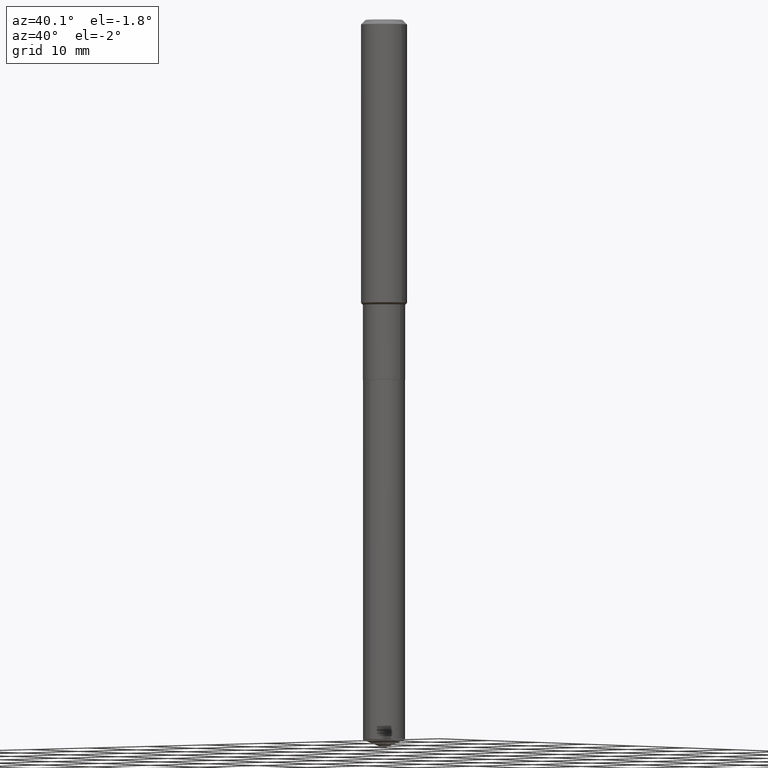
[diagram: clean part render]
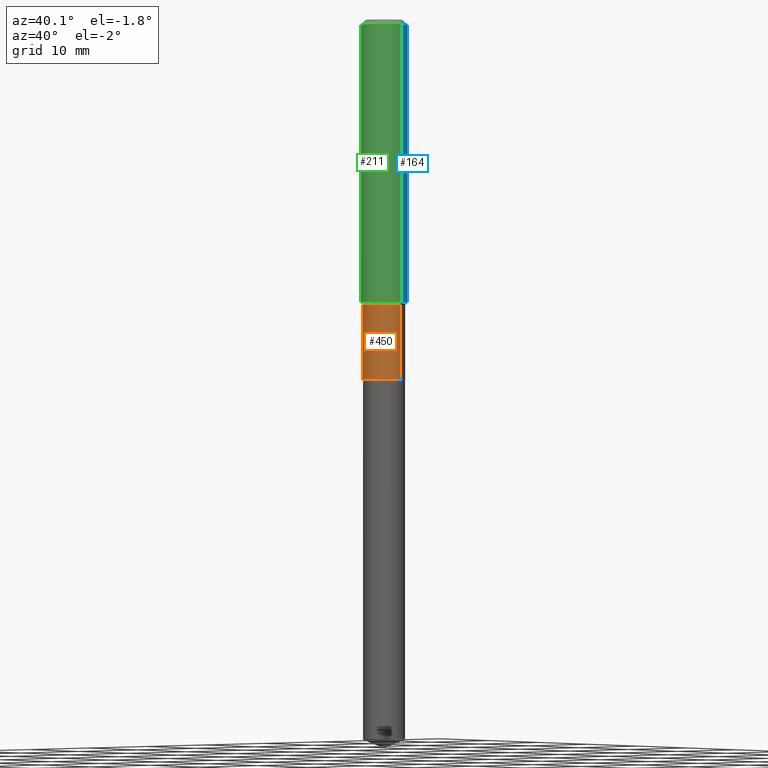
[diagram: same view with three faces highlighted in distinct colors, each labeled with its STEP entity id]
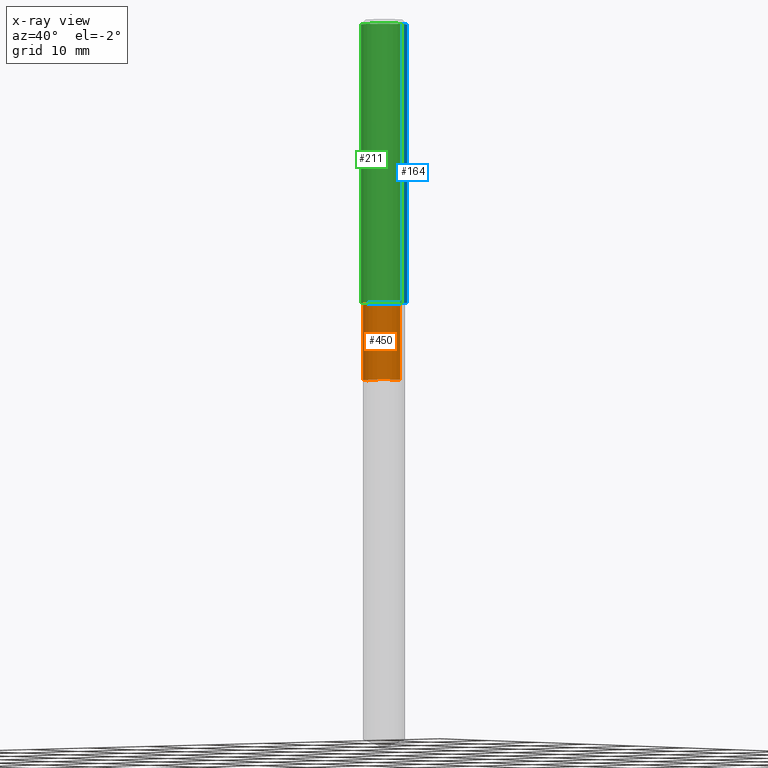
[diagram: x-ray of the same camera — body ghosted, the three highlighted faces saturated]
A machine part, auxiliary view with three faces highlighted in distinct colors.
The next image is the same camera in x-ray (body ghosted, the three faces saturated) — at least one of them is partly hidden behind the body in this view.
Their STEP definitions:

[orange] entity #450 — the highlighted cylindrical surface (edge-blend (fillet) strip) has radius 2.7495 mm, axis along (-0, 0, 1).
#34 = EDGE_CURVE ( 'NONE', #478, #66, #64, .T. ) ;
#54 = ORIENTED_EDGE ( 'NONE', *, *, #185, .T. ) ;
#64 = LINE ( 'NONE', #213, #67 ) ;
#66 = VERTEX_POINT ( 'NONE', #236 ) ;
#67 = VECTOR ( 'NONE', #364, 39.37007874015748143 ) ;
#82 = CARTESIAN_POINT ( 'NONE',  ( 4.523872744561885153E-29, -6.458891328725936072E-15, -1.849900000000000322 ) ) ;
#100 = CIRCLE ( 'NONE', #456, 0.1082499999999999435 ) ;
#111 = DIRECTION ( 'NONE',  ( 1.000000000000000000, -6.982962677686267499E-15, 0.000000000000000000 ) ) ;
#113 = CARTESIAN_POINT ( 'NONE',  ( 3.579188144732565988E-29, -5.110132087530827984E-15, -1.463600000000000012 ) ) ;
#140 = CARTESIAN_POINT ( 'NONE',  ( 0.000000000000000000, 0.000000000000000000, 0.000000000000000000 ) ) ;
#155 = DIRECTION ( 'NONE',  ( 1.000000000000000000, -6.982962677686271444E-15, 0.000000000000000000 ) ) ;
#168 = ORIENTED_EDGE ( 'NONE', *, *, #293, .F. ) ;
#170 = DIRECTION ( 'NONE',  ( -2.445468806185136877E-29, 3.491481338843145188E-15, 1.000000000000000000 ) ) ;
#185 = EDGE_CURVE ( 'NONE', #401, #478, #358, .T. ) ;
#194 = EDGE_CURVE ( 'NONE', #469, #66, #100, .T. ) ;
#213 = CARTESIAN_POINT ( 'NONE',  ( 0.1082499999999999712, -7.559057098595381624E-16, 5.278461359799098590E-30 ) ) ;
#215 = FACE_OUTER_BOUND ( 'NONE', #403, .T. ) ;
#236 = CARTESIAN_POINT ( 'NONE',  ( 0.1082499999999999435, -5.866037797390366639E-15, -1.463600000000000012 ) ) ;
#249 = CYLINDRICAL_SURFACE ( 'NONE', #318, 0.1082499999999999712 ) ;
#251 = DIRECTION ( 'NONE',  ( -2.445468806185136597E-29, 3.491481338843145583E-15, 1.000000000000000000 ) ) ;
#253 = CARTESIAN_POINT ( 'NONE',  ( 0.1082499999999999990, -7.214797038585475517E-15, -1.849900000000000322 ) ) ;
#280 = LINE ( 'NONE', #392, #359 ) ;
#293 = EDGE_CURVE ( 'NONE', #401, #469, #280, .T. ) ;
#314 = ORIENTED_EDGE ( 'NONE', *, *, #34, .T. ) ;
#318 = AXIS2_PLACEMENT_3D ( 'NONE', #140, #251, #370 ) ;
#319 = CARTESIAN_POINT ( 'NONE',  ( -0.1082499999999999851, -5.015349196668073880E-15, -1.849900000000000322 ) ) ;
#321 = CARTESIAN_POINT ( 'NONE',  ( -0.1082499999999999435, -5.015349196668073880E-15, -1.463600000000000012 ) ) ;
#338 = DIRECTION ( 'NONE',  ( -2.445468806185136597E-29, 3.491481338843145583E-15, 1.000000000000000000 ) ) ;
#346 = DIRECTION ( 'NONE',  ( -2.445468806185136597E-29, 3.491481338843145583E-15, 1.000000000000000000 ) ) ;
#358 = CIRCLE ( 'NONE', #422, 0.1082499999999999990 ) ;
#359 = VECTOR ( 'NONE', #170, 39.37007874015748143 ) ;
#364 = DIRECTION ( 'NONE',  ( -2.445468806185136877E-29, 3.491481338843145188E-15, 1.000000000000000000 ) ) ;
#370 = DIRECTION ( 'NONE',  ( 1.000000000000000000, -6.982962677686266711E-15, 4.876176775795935232E-29 ) ) ;
#392 = CARTESIAN_POINT ( 'NONE',  ( -0.1082499999999999712, 7.691625114603082469E-16, -5.324747235200933206E-30 ) ) ;
#393 = ORIENTED_EDGE ( 'NONE', *, *, #194, .F. ) ;
#401 = VERTEX_POINT ( 'NONE', #319 ) ;
#403 = EDGE_LOOP ( 'NONE', ( #168, #54, #314, #393 ) ) ;
#422 = AXIS2_PLACEMENT_3D ( 'NONE', #82, #346, #111 ) ;
#450 = ADVANCED_FACE ( 'NONE', ( #215 ), #249, .T. ) ;
#456 = AXIS2_PLACEMENT_3D ( 'NONE', #113, #338, #155 ) ;
#469 = VERTEX_POINT ( 'NONE', #321 ) ;
#478 = VERTEX_POINT ( 'NONE', #253 ) ;

[blue] entity #164 — the highlighted cylindrical surface (edge-blend (fillet) strip) has radius 2.9997 mm, axis along (-0, 0, 1).
#4 = FACE_OUTER_BOUND ( 'NONE', #106, .T. ) ;
#9 = CYLINDRICAL_SURFACE ( 'NONE', #197, 0.1181000000000000799 ) ;
#16 = CARTESIAN_POINT ( 'NONE',  ( -0.1181000000000000799, 8.391509709326788873E-16, -5.809262341591047988E-30 ) ) ;
#18 = VERTEX_POINT ( 'NONE', #178 ) ;
#25 = VERTEX_POINT ( 'NONE', #252 ) ;
#58 = LINE ( 'NONE', #425, #303 ) ;
#88 = DIRECTION ( 'NONE',  ( -2.445468806185136597E-29, 3.491481338843145583E-15, 1.000000000000000000 ) ) ;
#92 = DIRECTION ( 'NONE',  ( -2.445468806185136597E-29, 3.491481338843145583E-15, 1.000000000000000000 ) ) ;
#94 = DIRECTION ( 'NONE',  ( -2.445468806185136877E-29, 3.491481338843145188E-15, 1.000000000000000000 ) ) ;
#106 = EDGE_LOOP ( 'NONE', ( #397, #332, #489, #134 ) ) ;
#116 = CARTESIAN_POINT ( 'NONE',  ( 0.1180999999999999966, -9.071566814582237199E-16, -0.02362000000000014088 ) ) ;
#134 = ORIENTED_EDGE ( 'NONE', *, *, #327, .F. ) ;
#145 = AXIS2_PLACEMENT_3D ( 'NONE', #463, #88, #315 ) ;
#163 = DIRECTION ( 'NONE',  ( -2.445468806185136877E-29, 3.491481338843145188E-15, 1.000000000000000000 ) ) ;
#164 = ADVANCED_FACE ( 'NONE', ( #4 ), #9, .T. ) ;
#176 = VERTEX_POINT ( 'NONE', #344 ) ;
#178 = CARTESIAN_POINT ( 'NONE',  ( -0.1181000000000001632, -4.236590025410543405E-15, -1.453749999999999654 ) ) ;
#181 = AXIS2_PLACEMENT_3D ( 'NONE', #244, #92, #360 ) ;
#190 = DIRECTION ( 'NONE',  ( -2.445468806185136597E-29, 3.491481338843145583E-15, 1.000000000000000000 ) ) ;
#192 = CARTESIAN_POINT ( 'NONE',  ( 0.000000000000000000, 0.000000000000000000, 0.000000000000000000 ) ) ;
#197 = AXIS2_PLACEMENT_3D ( 'NONE', #192, #190, #304 ) ;
#201 = VERTEX_POINT ( 'NONE', #116 ) ;
#208 = LINE ( 'NONE', #16, #226 ) ;
#226 = VECTOR ( 'NONE', #163, 39.37007874015748143 ) ;
#227 = EDGE_CURVE ( 'NONE', #176, #18, #295, .T. ) ;
#244 = CARTESIAN_POINT ( 'NONE',  ( 3.555100276991642059E-29, -5.075740996343221602E-15, -1.453749999999999654 ) ) ;
#252 = CARTESIAN_POINT ( 'NONE',  ( -0.1180999999999999966, -1.739953921850669150E-15, -0.02362000000000014088 ) ) ;
#295 = CIRCLE ( 'NONE', #181, 0.1181000000000001632 ) ;
#303 = VECTOR ( 'NONE', #94, 39.37007874015748143 ) ;
#304 = DIRECTION ( 'NONE',  ( 1.000000000000000000, -6.982962677686266711E-15, 4.876176775795936353E-29 ) ) ;
#315 = DIRECTION ( 'NONE',  ( 1.000000000000000000, -6.982962677686266711E-15, 0.000000000000000000 ) ) ;
#327 = EDGE_CURVE ( 'NONE', #176, #201, #58, .T. ) ;
#332 = ORIENTED_EDGE ( 'NONE', *, *, #356, .T. ) ;
#344 = CARTESIAN_POINT ( 'NONE',  ( 0.1181000000000001632, -5.900428888577971443E-15, -1.453749999999999654 ) ) ;
#356 = EDGE_CURVE ( 'NONE', #18, #25, #208, .T. ) ;
#360 = DIRECTION ( 'NONE',  ( 1.000000000000000000, -6.982962677686270655E-15, 0.000000000000000000 ) ) ;
#382 = EDGE_CURVE ( 'NONE', #201, #25, #424, .T. ) ;
#397 = ORIENTED_EDGE ( 'NONE', *, *, #227, .T. ) ;
#424 = CIRCLE ( 'NONE', #145, 0.1180999999999999966 ) ;
#425 = CARTESIAN_POINT ( 'NONE',  ( 0.1181000000000000799, -8.246878922347486570E-16, 5.758764772215004644E-30 ) ) ;
#463 = CARTESIAN_POINT ( 'NONE',  ( 5.776197320209327532E-31, -8.246878922347559293E-17, -0.02362000000000014088 ) ) ;
#489 = ORIENTED_EDGE ( 'NONE', *, *, #382, .F. ) ;

[green] entity #211 — the highlighted cylindrical surface (edge-blend (fillet) strip) has radius 2.9997 mm, axis along (-0, 0, 1).
#8 = FACE_OUTER_BOUND ( 'NONE', #432, .T. ) ;
#16 = CARTESIAN_POINT ( 'NONE',  ( -0.1181000000000000799, 8.391509709326788873E-16, -5.809262341591047988E-30 ) ) ;
#18 = VERTEX_POINT ( 'NONE', #178 ) ;
#25 = VERTEX_POINT ( 'NONE', #252 ) ;
#29 = AXIS2_PLACEMENT_3D ( 'NONE', #462, #118, #313 ) ;
#45 = DIRECTION ( 'NONE',  ( -2.445468806185136597E-29, 3.491481338843145583E-15, 1.000000000000000000 ) ) ;
#57 = CARTESIAN_POINT ( 'NONE',  ( 3.555100276991642059E-29, -5.075740996343221602E-15, -1.453749999999999654 ) ) ;
#58 = LINE ( 'NONE', #425, #303 ) ;
#94 = DIRECTION ( 'NONE',  ( -2.445468806185136877E-29, 3.491481338843145188E-15, 1.000000000000000000 ) ) ;
#116 = CARTESIAN_POINT ( 'NONE',  ( 0.1180999999999999966, -9.071566814582237199E-16, -0.02362000000000014088 ) ) ;
#118 = DIRECTION ( 'NONE',  ( -2.445468806185136597E-29, 3.491481338843145583E-15, 1.000000000000000000 ) ) ;
#154 = CARTESIAN_POINT ( 'NONE',  ( 5.776197320209327532E-31, -8.246878922347559293E-17, -0.02362000000000014088 ) ) ;
#161 = EDGE_CURVE ( 'NONE', #25, #201, #486, .T. ) ;
#163 = DIRECTION ( 'NONE',  ( -2.445468806185136877E-29, 3.491481338843145188E-15, 1.000000000000000000 ) ) ;
#176 = VERTEX_POINT ( 'NONE', #344 ) ;
#178 = CARTESIAN_POINT ( 'NONE',  ( -0.1181000000000001632, -4.236590025410543405E-15, -1.453749999999999654 ) ) ;
#193 = DIRECTION ( 'NONE',  ( 1.000000000000000000, -6.982962677686266711E-15, 0.000000000000000000 ) ) ;
#201 = VERTEX_POINT ( 'NONE', #116 ) ;
#204 = DIRECTION ( 'NONE',  ( 1.000000000000000000, -6.982962677686270655E-15, 0.000000000000000000 ) ) ;
#208 = LINE ( 'NONE', #16, #226 ) ;
#211 = ADVANCED_FACE ( 'NONE', ( #8 ), #305, .T. ) ;
#226 = VECTOR ( 'NONE', #163, 39.37007874015748143 ) ;
#238 = DIRECTION ( 'NONE',  ( -2.445468806185136597E-29, 3.491481338843145583E-15, 1.000000000000000000 ) ) ;
#241 = CIRCLE ( 'NONE', #414, 0.1181000000000001632 ) ;
#252 = CARTESIAN_POINT ( 'NONE',  ( -0.1180999999999999966, -1.739953921850669150E-15, -0.02362000000000014088 ) ) ;
#281 = ORIENTED_EDGE ( 'NONE', *, *, #394, .T. ) ;
#303 = VECTOR ( 'NONE', #94, 39.37007874015748143 ) ;
#305 = CYLINDRICAL_SURFACE ( 'NONE', #29, 0.1181000000000000799 ) ;
#313 = DIRECTION ( 'NONE',  ( 1.000000000000000000, -6.982962677686266711E-15, 4.876176775795936353E-29 ) ) ;
#327 = EDGE_CURVE ( 'NONE', #176, #201, #58, .T. ) ;
#344 = CARTESIAN_POINT ( 'NONE',  ( 0.1181000000000001632, -5.900428888577971443E-15, -1.453749999999999654 ) ) ;
#356 = EDGE_CURVE ( 'NONE', #18, #25, #208, .T. ) ;
#389 = AXIS2_PLACEMENT_3D ( 'NONE', #154, #45, #193 ) ;
#394 = EDGE_CURVE ( 'NONE', #18, #176, #241, .T. ) ;
#410 = ORIENTED_EDGE ( 'NONE', *, *, #327, .T. ) ;
#414 = AXIS2_PLACEMENT_3D ( 'NONE', #57, #238, #204 ) ;
#425 = CARTESIAN_POINT ( 'NONE',  ( 0.1181000000000000799, -8.246878922347486570E-16, 5.758764772215004644E-30 ) ) ;
#432 = EDGE_LOOP ( 'NONE', ( #480, #281, #410, #435 ) ) ;
#435 = ORIENTED_EDGE ( 'NONE', *, *, #161, .F. ) ;
#462 = CARTESIAN_POINT ( 'NONE',  ( 0.000000000000000000, 0.000000000000000000, 0.000000000000000000 ) ) ;
#480 = ORIENTED_EDGE ( 'NONE', *, *, #356, .F. ) ;
#486 = CIRCLE ( 'NONE', #389, 0.1180999999999999966 ) ;